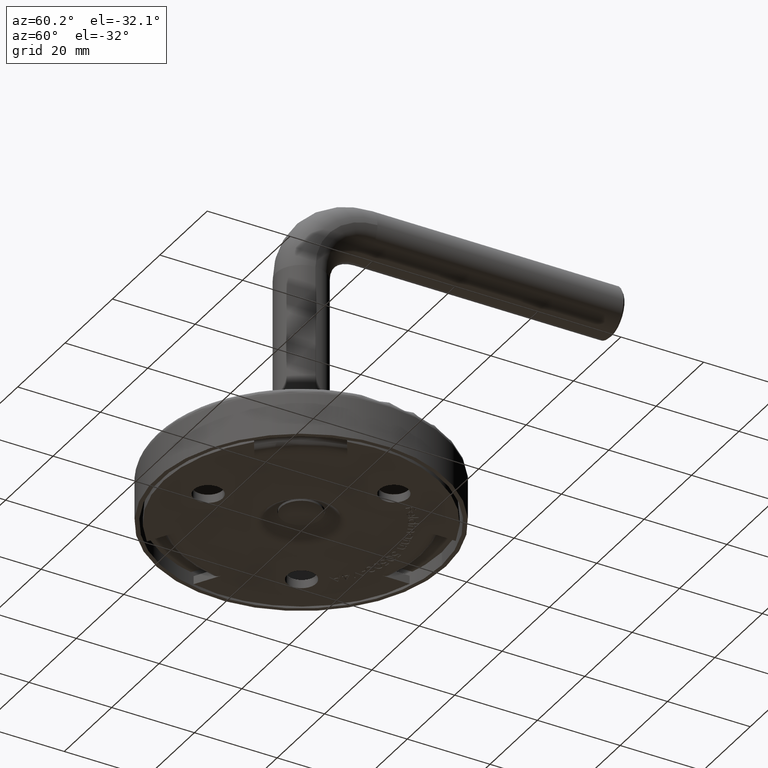
[diagram: clean part render]
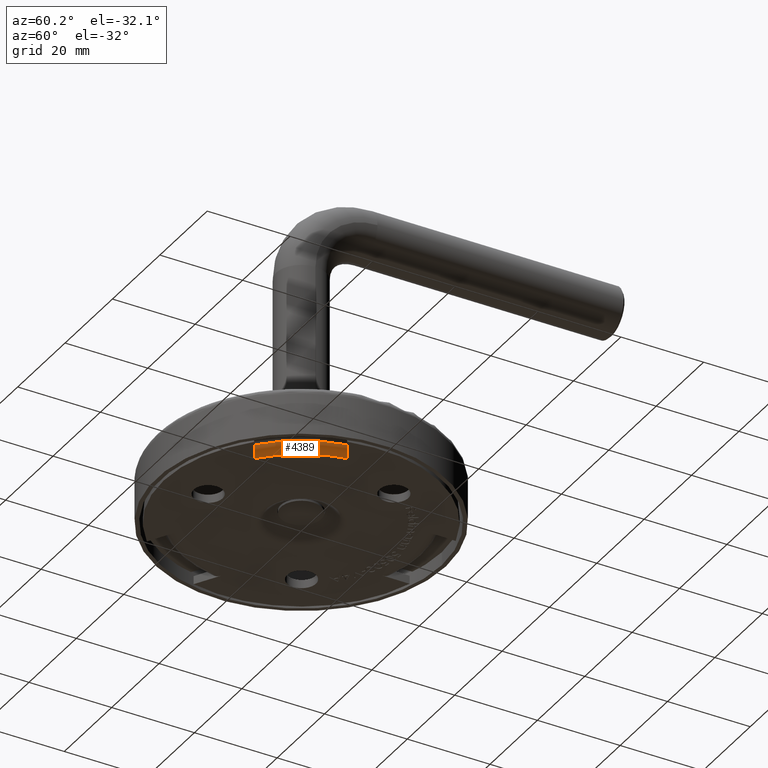
[diagram: same view with one face highlighted and labeled with its STEP entity id]
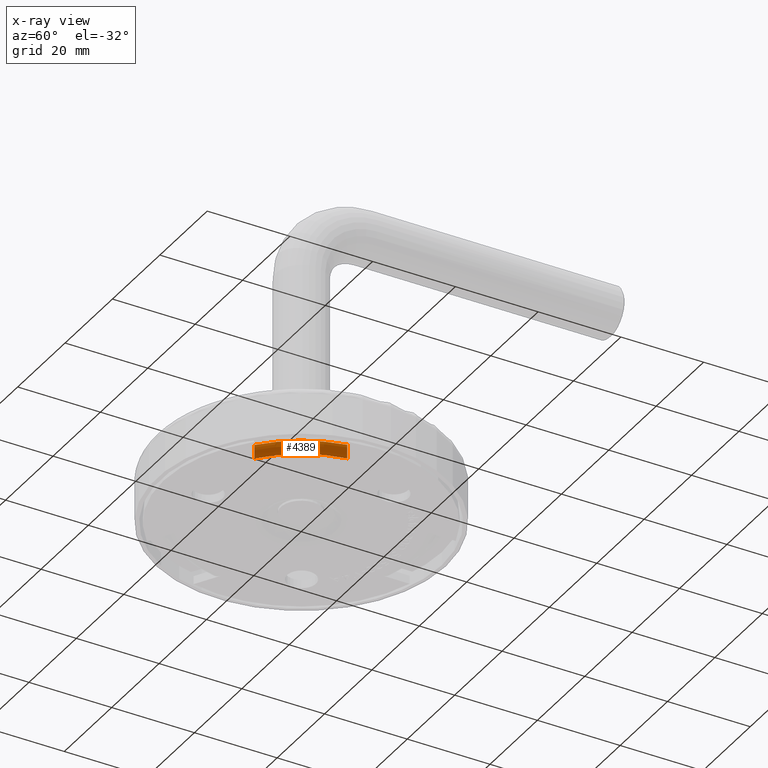
[diagram: x-ray of the same camera — body ghosted, the highlighted face saturated]
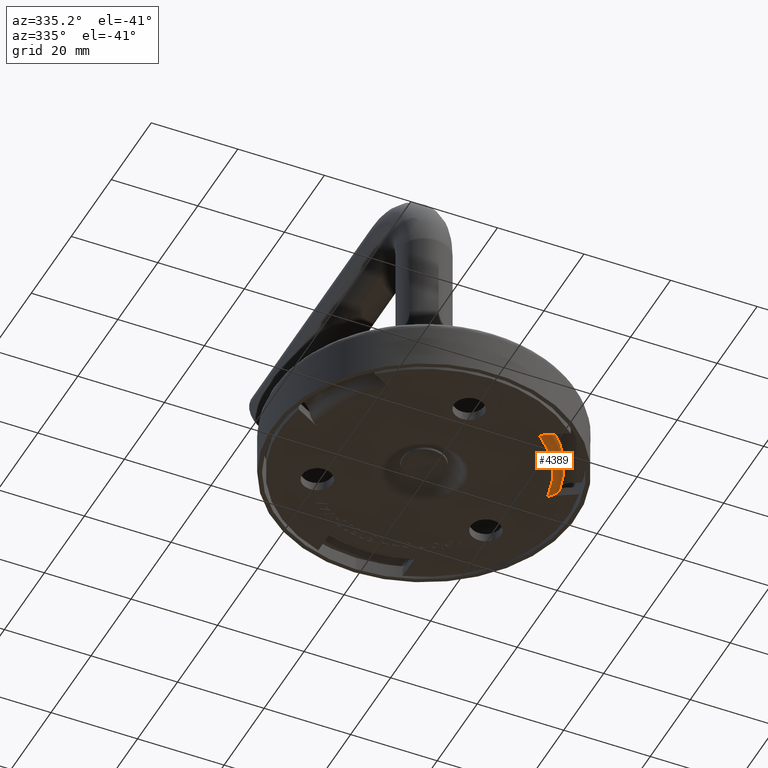
[diagram: same view with one face highlighted and labeled with its STEP entity id]
A machine part, auxiliary view. The second image highlights one B-rep face of the part: STEP entity #4389.
The next image is the same camera in x-ray: the body ghosted, the highlighted face saturated — about 0% of this face is hidden behind the body in this view.
A second angle (auxiliary view) of the same face is appended — the face is thin or edge-on in the first view.
In plain terms, the highlighted toroidal blend (fillet) surface has major radius 27 mm and minor (blend) radius 2.5 mm.
Its self-contained STEP definition (entity closure, byte-faithful):
#262 = CARTESIAN_POINT ( 'NONE',  ( -19.06535932879880600, -22.26572058987656500, -1.511171601879716300 ) ) ;
#378 = B_SPLINE_CURVE_WITH_KNOTS ( 'NONE', 3,
 ( #14617, #2107, #5519, #6688, #14666, #8983, #10587, #7133, #6068, #7084, #1403, #4780, #262, #8228 ),
 .UNSPECIFIED., .F., .F.,
 ( 4, 2, 2, 2, 2, 2, 4 ),
 ( 0.003333664579546489400, 0.003747166311686145300, 0.004160668043825801700, 0.004574169775965458000, 0.004987671508105113500, 0.005814674972384433100, 0.006641678436663752700 ),
 .UNSPECIFIED. ) ;
#432 = EDGE_CURVE ( 'NONE', #9826, #2377, #378, .T. ) ;
#462 = FACE_OUTER_BOUND ( 'NONE', #10283, .T. ) ;
#584 = CARTESIAN_POINT ( 'NONE',  ( -27.15789152557967900, -4.421285733718453200, -0.05028959223715725300 ) ) ;
#773 = ORIENTED_EDGE ( 'NONE', *, *, #8582, .F. ) ;
#931 = ORIENTED_EDGE ( 'NONE', *, *, #432, .F. ) ;
#1382 = CARTESIAN_POINT ( 'NONE',  ( 1.873462794125674700E-030, 3.725176496876977300E-031, -1.777777777777763000 ) ) ;
#1403 = CARTESIAN_POINT ( 'NONE',  ( -18.66206418050953500, -22.03287802744887700, -0.8236414083475376300 ) ) ;
#1752 = CARTESIAN_POINT ( 'NONE',  ( -16.92988764015984400, -21.03280543559406000, 2.224834079049785600E-029 ) ) ;
#1796 = EDGE_CURVE ( 'NONE', #9826, #11116, #11377, .T. ) ;
#1828 = CARTESIAN_POINT ( 'NONE',  ( -27.61655907746441600, -4.686097568267654400, -0.2098728989196870000 ) ) ;
#2065 = TOROIDAL_SURFACE ( 'NONE', #14789, 27.00000000000000000, 2.500000000000000000 ) ;
#2107 = CARTESIAN_POINT ( 'NONE',  ( -17.04998553569164000, -21.10214398790842700, 3.435113883158208700E-014 ) ) ;
#2305 = AXIS2_PLACEMENT_3D ( 'NONE', #1382, #5903, #9406 ) ;
#2377 = VERTEX_POINT ( 'NONE', #4039 ) ;
#2644 = B_SPLINE_CURVE_WITH_KNOTS ( 'NONE', 3,
 ( #12016, #3976, #11006, #584, #5288, #7518, #1828, #8740, #9719, #12108, #13151, #13108, #10960, #13196 ),
 .UNSPECIFIED., .F., .F.,
 ( 4, 2, 2, 2, 2, 2, 4 ),
 ( 0.003333664579546517600, 0.003747166311686172700, 0.004160668043825827700, 0.004574169775965482300, 0.004987671508105137800, 0.005814674972384448700, 0.006641678436663759700 ),
 .UNSPECIFIED. ) ;
#3976 = CARTESIAN_POINT ( 'NONE',  ( -26.79998553569161100, -4.214648614111991900, 3.296878106166334700E-014 ) ) ;
#4039 = CARTESIAN_POINT ( 'NONE',  ( -19.13921220495711900, -22.30835956780702000, -1.777777777777764600 ) ) ;
#4389 = ADVANCED_FACE ( 'NONE', ( #462 ), #2065, .T. ) ;
#4780 = CARTESIAN_POINT ( 'NONE',  ( -18.95101041505570900, -22.19970121374543800, -1.261679151299382800 ) ) ;
#5288 = CARTESIAN_POINT ( 'NONE',  ( -27.27428289049791100, -4.488484319585341000, -0.08011036018040942900 ) ) ;
#5519 = CARTESIAN_POINT ( 'NONE',  ( -17.17123916071041000, -21.17214980095322800, -0.01020273115366887400 ) ) ;
#5814 = CARTESIAN_POINT ( 'NONE',  ( -26.67988764015983300, -4.145310061797573600, 2.898448762879168300E-029 ) ) ;
#5903 = DIRECTION ( 'NONE',  ( 1.053822821695700200E-030, 2.095411779493315200E-031, -1.000000000000000000 ) ) ;
#6024 = CARTESIAN_POINT ( 'NONE',  ( -28.88921220495712900, -5.420864194010539100, -1.777777777777764100 ) ) ;
#6068 = CARTESIAN_POINT ( 'NONE',  ( -18.18730469056833600, -21.75877550813099500, -0.3973551638354209700 ) ) ;
#6688 = CARTESIAN_POINT ( 'NONE',  ( -17.40789152557972500, -21.30878110751487900, -0.05028959223715116100 ) ) ;
#6956 = CARTESIAN_POINT ( 'NONE',  ( 2.634557054239233200E-030, 5.238529448733252600E-031, -2.499999999999985300 ) ) ;
#7038 = DIRECTION ( 'NONE',  ( 1.053822821695700200E-030, 2.095411779493315200E-031, -1.000000000000000000 ) ) ;
#7083 = CARTESIAN_POINT ( 'NONE',  ( 0.0000000000000000000, 0.0000000000000000000, 0.0000000000000000000 ) ) ;
#7084 = CARTESIAN_POINT ( 'NONE',  ( -18.48297647628133000, -21.92948169320416300, -0.6294935080458659000 ) ) ;
#7133 = CARTESIAN_POINT ( 'NONE',  ( -18.08372789324887400, -21.69897541631680900, -0.3289154268044417500 ) ) ;
#7518 = CARTESIAN_POINT ( 'NONE',  ( -27.50313457422465600, -4.620611900789477900, -0.1596169034018275200 ) ) ;
#8228 = CARTESIAN_POINT ( 'NONE',  ( -19.13921220495711900, -22.30835956780702000, -1.777777777777764600 ) ) ;
#8582 = EDGE_CURVE ( 'NONE', #2377, #14345, #13529, .T. ) ;
#8740 = CARTESIAN_POINT ( 'NONE',  ( -27.83372789324881700, -4.811480042520376100, -0.3289154268044529000 ) ) ;
#8983 = CARTESIAN_POINT ( 'NONE',  ( -17.75313457422469600, -21.50810727458590300, -0.1596169034018194400 ) ) ;
#9106 = ORIENTED_EDGE ( 'NONE', *, *, #11639, .T. ) ;
#9251 = DIRECTION ( 'NONE',  ( -1.000000000000000000, -8.381647117973246900E-031, -1.053822821695700200E-030 ) ) ;
#9406 = DIRECTION ( 'NONE',  ( -1.000000000000000000, -8.381647117973246900E-031, 0.0000000000000000000 ) ) ;
#9719 = CARTESIAN_POINT ( 'NONE',  ( -27.93730469056828600, -4.871280134334562600, -0.3973551638354311800 ) ) ;
#9826 = VERTEX_POINT ( 'NONE', #1752 ) ;
#10283 = EDGE_LOOP ( 'NONE', ( #10905, #9106, #773, #931 ) ) ;
#10586 = DIRECTION ( 'NONE',  ( -1.000000000000000000, -8.381647117973245200E-031, 1.053822821695697400E-030 ) ) ;
#10587 = CARTESIAN_POINT ( 'NONE',  ( -17.86655907746447300, -21.57359294206409200, -0.2098728989196784700 ) ) ;
#10905 = ORIENTED_EDGE ( 'NONE', *, *, #1796, .T. ) ;
#10960 = CARTESIAN_POINT ( 'NONE',  ( -28.81535932879874900, -5.378225216080116100, -1.511171601879727700 ) ) ;
#11006 = CARTESIAN_POINT ( 'NONE',  ( -26.92123916071037100, -4.284654427156796800, -0.01020273115367282900 ) ) ;
#11116 = VERTEX_POINT ( 'NONE', #5814 ) ;
#11377 = CIRCLE ( 'NONE', #12769, 26.99999999999990100 ) ;
#11639 = EDGE_CURVE ( 'NONE', #11116, #14345, #2644, .T. ) ;
#12016 = CARTESIAN_POINT ( 'NONE',  ( -26.67988764015983300, -4.145310061797573600, 2.898448762879168300E-029 ) ) ;
#12108 = CARTESIAN_POINT ( 'NONE',  ( -28.23297647628127600, -5.041986319407729200, -0.6294935080458795600 ) ) ;
#12611 = DIRECTION ( 'NONE',  ( 1.053822821695700200E-030, 2.095411779493315200E-031, -1.000000000000000000 ) ) ;
#12769 = AXIS2_PLACEMENT_3D ( 'NONE', #7083, #7038, #10586 ) ;
#13108 = CARTESIAN_POINT ( 'NONE',  ( -28.70101041505565200, -5.312205839949004200, -1.261679151299399200 ) ) ;
#13151 = CARTESIAN_POINT ( 'NONE',  ( -28.41206418050947800, -5.145382653652442100, -0.8236414083475477300 ) ) ;
#13196 = CARTESIAN_POINT ( 'NONE',  ( -28.88921220495712900, -5.420864194010539100, -1.777777777777764100 ) ) ;
#13529 = CIRCLE ( 'NONE', #2305, 29.39340658094855700 ) ;
#14345 = VERTEX_POINT ( 'NONE', #6024 ) ;
#14617 = CARTESIAN_POINT ( 'NONE',  ( -16.92988764015984400, -21.03280543559406000, 2.224834079049785600E-029 ) ) ;
#14666 = CARTESIAN_POINT ( 'NONE',  ( -17.52428289049795800, -21.37597969338177300, -0.08011036018040378100 ) ) ;
#14789 = AXIS2_PLACEMENT_3D ( 'NONE', #6956, #12611, #9251 ) ;